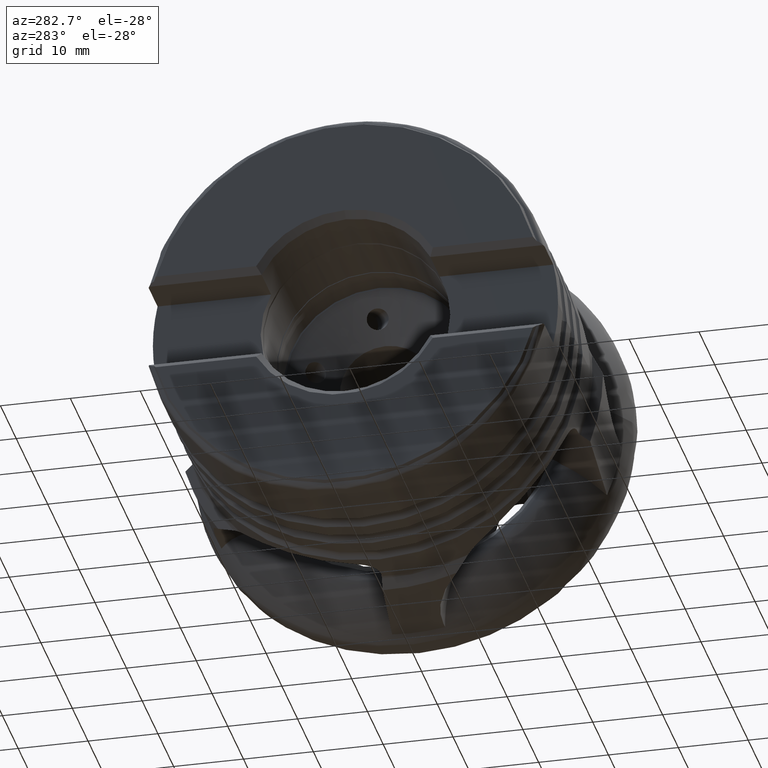
[diagram: clean part render]
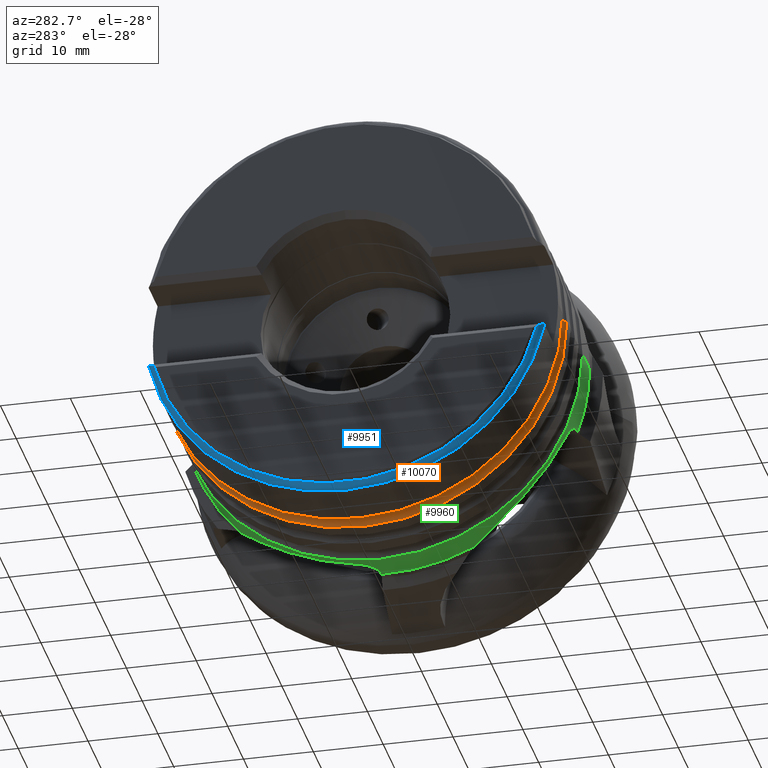
[diagram: same view with three faces highlighted in distinct colors, each labeled with its STEP entity id]
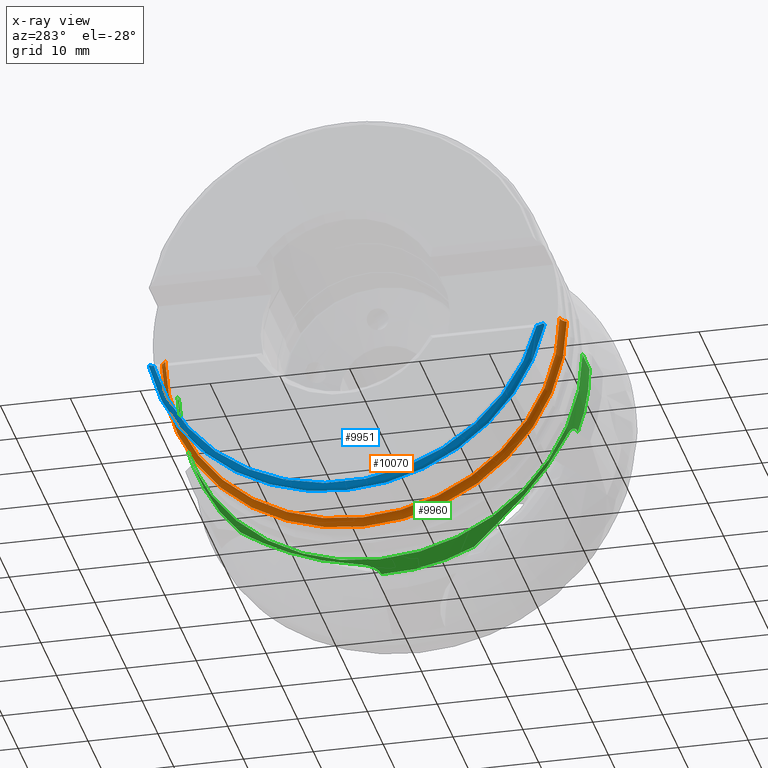
[diagram: x-ray of the same camera — body ghosted, the three highlighted faces saturated]
A machine part, auxiliary view with three faces highlighted in distinct colors.
The next image is the same camera in x-ray (body ghosted, the three faces saturated) — at least one of them is partly hidden behind the body in this view.
Their STEP definitions:

[orange] entity #10070 — the highlighted toroidal blend (fillet) surface has major radius 29.75 mm and minor (blend) radius 1.5 mm.
#56 = VERTEX_POINT ( 'NONE', #5645 ) ;
#62 = VERTEX_POINT ( 'NONE', #5600 ) ;
#236 = FACE_OUTER_BOUND ( 'NONE', #4464, .T. ) ;
#246 = TOROIDAL_SURFACE ( 'NONE', #8723, 29.75000000000000400, 1.499999999999999800 ) ;
#457 = ORIENTED_EDGE ( 'NONE', *, *, #3130, .F. ) ;
#463 = ORIENTED_EDGE ( 'NONE', *, *, #3115, .F. ) ;
#478 = ORIENTED_EDGE ( 'NONE', *, *, #3110, .T. ) ;
#479 = ORIENTED_EDGE ( 'NONE', *, *, #3131, .T. ) ;
#641 = CARTESIAN_POINT ( 'NONE',  ( -37.70096189432333500, -28.25000000000000400, 3.459627207591272700E-015 ) ) ;
#1651 = CIRCLE ( 'NONE', #8375, 29.00000000000000000 ) ;
#1660 = CIRCLE ( 'NONE', #8372, 28.25000000000000000 ) ;
#1668 = CIRCLE ( 'NONE', #8382, 1.500000000000001300 ) ;
#1671 = CIRCLE ( 'NONE', #8383, 1.500000000000001300 ) ;
#1805 = VERTEX_POINT ( 'NONE', #641 ) ;
#2006 = CARTESIAN_POINT ( 'NONE',  ( -36.40192378864668400, 28.99999999999999600, 0.0000000000000000000 ) ) ;
#2314 = CARTESIAN_POINT ( 'NONE',  ( -37.70096189432333500, -3.469446951953614200E-015, 0.0000000000000000000 ) ) ;
#2315 = DIRECTION ( 'NONE',  ( 1.000000000000000000, 1.224606353822377000E-016, -0.0000000000000000000 ) ) ;
#2316 = DIRECTION ( 'NONE',  ( 0.0000000000000000000, 1.000000000000000000, 0.0000000000000000000 ) ) ;
#2343 = CARTESIAN_POINT ( 'NONE',  ( -36.40192378864667700, -4.457802716293465500E-015, 0.0000000000000000000 ) ) ;
#2344 = DIRECTION ( 'NONE',  ( 1.000000000000000000, 1.224606353822377000E-016, -0.0000000000000000000 ) ) ;
#2345 = DIRECTION ( 'NONE',  ( -2.392722035830079000E-016, 1.000000000000000000, 0.0000000000000000000 ) ) ;
#2790 = VERTEX_POINT ( 'NONE', #2006 ) ;
#3110 = EDGE_CURVE ( 'NONE', #1805, #56, #1660, .T. ) ;
#3115 = EDGE_CURVE ( 'NONE', #62, #2790, #1651, .T. ) ;
#3130 = EDGE_CURVE ( 'NONE', #2790, #56, #1668, .T. ) ;
#3131 = EDGE_CURVE ( 'NONE', #62, #1805, #1671, .T. ) ;
#4464 = EDGE_LOOP ( 'NONE', ( #479, #478, #457, #463 ) ) ;
#5600 = CARTESIAN_POINT ( 'NONE',  ( -36.40192378864667000, -29.00000000000000400, 3.551475717527324800E-015 ) ) ;
#5645 = CARTESIAN_POINT ( 'NONE',  ( -37.70096189432333500, 28.24999999999999600, 0.0000000000000000000 ) ) ;
#7198 = CARTESIAN_POINT ( 'NONE',  ( -37.70096189432333500, -3.469446951953614200E-015, 0.0000000000000000000 ) ) ;
#7200 = DIRECTION ( 'NONE',  ( 1.000000000000000000, 1.224606353822377000E-016, -0.0000000000000000000 ) ) ;
#7204 = DIRECTION ( 'NONE',  ( -1.224606353822377000E-016, 1.000000000000000000, 0.0000000000000000000 ) ) ;
#7452 = CARTESIAN_POINT ( 'NONE',  ( -37.70096189432334200, 29.75000000000000000, 0.0000000000000000000 ) ) ;
#7453 = DIRECTION ( 'NONE',  ( -0.0000000000000000000, 0.0000000000000000000, -1.000000000000000000 ) ) ;
#7454 = DIRECTION ( 'NONE',  ( -1.000000000000000000, 0.0000000000000000000, 0.0000000000000000000 ) ) ;
#7457 = CARTESIAN_POINT ( 'NONE',  ( -37.70096189432332800, -29.75000000000000700, 3.643324227463376200E-015 ) ) ;
#7458 = DIRECTION ( 'NONE',  ( -1.499710251424085100E-032, 1.224646799147353200E-016, 1.000000000000000000 ) ) ;
#7459 = DIRECTION ( 'NONE',  ( 0.0000000000000000000, -1.000000000000000000, 1.224646799147354400E-016 ) ) ;
#8372 = AXIS2_PLACEMENT_3D ( 'NONE', #2314, #2315, #2316 ) ;
#8375 = AXIS2_PLACEMENT_3D ( 'NONE', #2343, #2344, #2345 ) ;
#8382 = AXIS2_PLACEMENT_3D ( 'NONE', #7452, #7453, #7454 ) ;
#8383 = AXIS2_PLACEMENT_3D ( 'NONE', #7457, #7458, #7459 ) ;
#8723 = AXIS2_PLACEMENT_3D ( 'NONE', #7198, #7200, #7204 ) ;
#10070 = ADVANCED_FACE ( 'NONE', ( #236 ), #246, .F. ) ;

[blue] entity #9951 — the highlighted toroidal blend (fillet) surface has major radius 28 mm and minor (blend) radius 1 mm.
#70 = VERTEX_POINT ( 'NONE', #5569 ) ;
#591 = CARTESIAN_POINT ( 'NONE',  ( -48.47876197310684900, -27.40284955085113700, -6.678761973106826800 ) ) ;
#661 = DIRECTION ( 'NONE',  ( 1.000000000000000000, 1.224606353822377000E-016, -0.0000000000000000000 ) ) ;
#664 = DIRECTION ( 'NONE',  ( 0.0000000000000000000, 1.000000000000000000, 0.0000000000000000000 ) ) ;
#688 = CARTESIAN_POINT ( 'NONE',  ( -48.47876197310684900, -5.936739993770927400E-015, 0.0000000000000000000 ) ) ;
#756 = CARTESIAN_POINT ( 'NONE',  ( -48.47876197310684900, 27.40284955085112300, -6.678761973106833900 ) ) ;
#771 = CARTESIAN_POINT ( 'NONE',  ( -48.00000000000000000, -28.19232914485657200, -6.199999999999992200 ) ) ;
#794 = CARTESIAN_POINT ( 'NONE',  ( -48.00000000000000000, 28.19232914485655800, -6.199999999999992200 ) ) ;
#819 = CARTESIAN_POINT ( 'NONE',  ( -47.49999999999999300, 28.32948993540125200, -6.199999999999992200 ) ) ;
#1018 = EDGE_CURVE ( 'NONE', #1822, #2684, #1552, .T. ) ;
#1033 = EDGE_CURVE ( 'NONE', #1822, #2685, #2903, .T. ) ;
#1446 = EDGE_LOOP ( 'NONE', ( #6067, #6068, #6069, #6070, #6071, #6072 ) ) ;
#1552 = CIRCLE ( 'NONE', #8326, 28.20499999999999800 ) ;
#1761 = CARTESIAN_POINT ( 'NONE',  ( -48.20991092553722300, -27.99330994152161600, -6.409910925537214900 ) ) ;
#1765 = CARTESIAN_POINT ( 'NONE',  ( -48.33541476243733100, -27.79598659037764100, -6.535414762437317100 ) ) ;
#1766 = CARTESIAN_POINT ( 'NONE',  ( -48.47876197310684900, -27.40284955085113700, -6.678761973106826800 ) ) ;
#1767 = CARTESIAN_POINT ( 'NONE',  ( -48.10961873495375600, -28.10342124075786100, -6.309618734953744500 ) ) ;
#1777 = CARTESIAN_POINT ( 'NONE',  ( -48.43667703717614600, -27.57047027243838900, -6.636677037176133000 ) ) ;
#1780 = CARTESIAN_POINT ( 'NONE',  ( -48.37362533912521200, -27.72356944803954100, -6.573625339125192600 ) ) ;
#1781 = CARTESIAN_POINT ( 'NONE',  ( -48.00000000000000000, -28.19232914485657200, -6.199999999999992200 ) ) ;
#1791 = CARTESIAN_POINT ( 'NONE',  ( -48.46194566721610600, -27.48958694475360400, -6.661945667216092400 ) ) ;
#1822 = VERTEX_POINT ( 'NONE', #591 ) ;
#2653 = VERTEX_POINT ( 'NONE', #794 ) ;
#2679 = VERTEX_POINT ( 'NONE', #819 ) ;
#2684 = VERTEX_POINT ( 'NONE', #756 ) ;
#2685 = VERTEX_POINT ( 'NONE', #771 ) ;
#2903 = B_SPLINE_CURVE_WITH_KNOTS ( 'NONE', 3,
 ( #1766, #1791, #1777, #1780, #1765, #1761, #1767, #1781 ),
 .UNSPECIFIED., .F., .F.,
 ( 4, 2, 2, 4 ),
 ( 1.053010900005165300E-006, 0.0002661246800636753100, 0.0005311963492273454500, 0.001061339687554692100 ),
 .UNSPECIFIED. ) ;
#2909 = B_SPLINE_CURVE_WITH_KNOTS ( 'NONE', 3,
 ( #5344, #5334, #5348, #5349, #5350, #5351 ),
 .UNSPECIFIED., .F., .F.,
 ( 4, 2, 4 ),
 ( 0.003335067615732117800, 0.003595925542677066700, 0.003856783469622015700 ),
 .UNSPECIFIED. ) ;
#2919 = B_SPLINE_CURVE_WITH_KNOTS ( 'NONE', 3,
 ( #5464, #5471, #5489, #5490, #5491, #5492, #5493, #5494 ),
 .UNSPECIFIED., .F., .F.,
 ( 4, 2, 2, 4 ),
 ( 3.226847663231204700E-007, 0.0005303020027152318700, 0.0007952916616896912700, 0.001060281320664150600 ),
 .UNSPECIFIED. ) ;
#2922 = B_SPLINE_CURVE_WITH_KNOTS ( 'NONE', 3,
 ( #5532, #5533, #5537, #5538, #5539, #5540 ),
 .UNSPECIFIED., .F., .F.,
 ( 4, 2, 4 ),
 ( 0.006013191223977129600, 0.006273666028562343300, 0.006534140833147556900 ),
 .UNSPECIFIED. ) ;
#3341 = EDGE_CURVE ( 'NONE', #70, #2679, #4915, .T. ) ;
#3347 = EDGE_CURVE ( 'NONE', #2679, #2653, #2909, .T. ) ;
#3376 = EDGE_CURVE ( 'NONE', #2653, #2684, #2919, .T. ) ;
#3387 = EDGE_CURVE ( 'NONE', #2685, #70, #2922, .T. ) ;
#4386 = FACE_OUTER_BOUND ( 'NONE', #1446, .T. ) ;
#4393 = TOROIDAL_SURFACE ( 'NONE', #8595, 28.00000000000000400, 1.000000000000001800 ) ;
#4915 = CIRCLE ( 'NONE', #8437, 29.00000000000000400 ) ;
#5334 = CARTESIAN_POINT ( 'NONE',  ( -47.58746555648979600, 28.32948993540123800, -6.199999999999992200 ) ) ;
#5336 = CARTESIAN_POINT ( 'NONE',  ( -47.49999999999999300, -5.816880180656290400E-015, 0.0000000000000000000 ) ) ;
#5337 = DIRECTION ( 'NONE',  ( 1.000000000000000000, 1.224606353822377000E-016, -0.0000000000000000000 ) ) ;
#5338 = DIRECTION ( 'NONE',  ( -2.392722035830078500E-016, 1.000000000000000000, 0.0000000000000000000 ) ) ;
#5344 = CARTESIAN_POINT ( 'NONE',  ( -47.49999999999999300, 28.32948993540125200, -6.199999999999992200 ) ) ;
#5348 = CARTESIAN_POINT ( 'NONE',  ( -47.67518709770934700, 28.31757686231651800, -6.199999999999993100 ) ) ;
#5349 = CARTESIAN_POINT ( 'NONE',  ( -47.84303445097531700, 28.27147959887726700, -6.199999999999993100 ) ) ;
#5350 = CARTESIAN_POINT ( 'NONE',  ( -47.92508939117979600, 28.23661231786740800, -6.199999999999993100 ) ) ;
#5351 = CARTESIAN_POINT ( 'NONE',  ( -48.00000000000000000, 28.19232914485655800, -6.199999999999992200 ) ) ;
#5464 = CARTESIAN_POINT ( 'NONE',  ( -48.00000000000000000, 28.19232914485655800, -6.199999999999992200 ) ) ;
#5471 = CARTESIAN_POINT ( 'NONE',  ( -48.10948692710240200, 28.10352814547437100, -6.309486927102391900 ) ) ;
#5489 = CARTESIAN_POINT ( 'NONE',  ( -48.20879110325744000, 27.99492430707387000, -6.408791103257437200 ) ) ;
#5490 = CARTESIAN_POINT ( 'NONE',  ( -48.33541284190091100, 27.79606226131219100, -6.535412841900893900 ) ) ;
#5491 = CARTESIAN_POINT ( 'NONE',  ( -48.37286614068249700, 27.72514046689707700, -6.572866140682478400 ) ) ;
#5492 = CARTESIAN_POINT ( 'NONE',  ( -48.43616489861664600, 27.57198082867866200, -6.636164898616638800 ) ) ;
#5493 = CARTESIAN_POINT ( 'NONE',  ( -48.46199337618384800, 27.48934086505250800, -6.661993376183832400 ) ) ;
#5494 = CARTESIAN_POINT ( 'NONE',  ( -48.47876197310684900, 27.40284955085112300, -6.678761973106833900 ) ) ;
#5532 = CARTESIAN_POINT ( 'NONE',  ( -48.00000000000000000, -28.19232914485657200, -6.199999999999992200 ) ) ;
#5533 = CARTESIAN_POINT ( 'NONE',  ( -47.92517507625178300, -28.23656166540413500, -6.199999999999992200 ) ) ;
#5537 = CARTESIAN_POINT ( 'NONE',  ( -47.84338497286842800, -28.27140856058295200, -6.199999999999993100 ) ) ;
#5538 = CARTESIAN_POINT ( 'NONE',  ( -47.67431044976236600, -28.31779231619363900, -6.199999999999993100 ) ) ;
#5539 = CARTESIAN_POINT ( 'NONE',  ( -47.58688434192325200, -28.32948993540125600, -6.199999999999993100 ) ) ;
#5540 = CARTESIAN_POINT ( 'NONE',  ( -47.49999999999999300, -28.32948993540124900, -6.199999999999992200 ) ) ;
#5569 = CARTESIAN_POINT ( 'NONE',  ( -47.49999999999999300, -28.32948993540124900, -6.199999999999992200 ) ) ;
#6067 = ORIENTED_EDGE ( 'NONE', *, *, #3347, .F. ) ;
#6068 = ORIENTED_EDGE ( 'NONE', *, *, #3341, .F. ) ;
#6069 = ORIENTED_EDGE ( 'NONE', *, *, #3387, .F. ) ;
#6070 = ORIENTED_EDGE ( 'NONE', *, *, #1033, .F. ) ;
#6071 = ORIENTED_EDGE ( 'NONE', *, *, #1018, .T. ) ;
#6072 = ORIENTED_EDGE ( 'NONE', *, *, #3376, .F. ) ;
#6495 = DIRECTION ( 'NONE',  ( 1.000000000000000000, 1.224606353822377000E-016, -0.0000000000000000000 ) ) ;
#6497 = CARTESIAN_POINT ( 'NONE',  ( -47.50000000000000000, -6.938893903907228400E-015, 0.0000000000000000000 ) ) ;
#6499 = DIRECTION ( 'NONE',  ( -1.224606353822377000E-016, 1.000000000000000000, 0.0000000000000000000 ) ) ;
#8326 = AXIS2_PLACEMENT_3D ( 'NONE', #688, #661, #664 ) ;
#8437 = AXIS2_PLACEMENT_3D ( 'NONE', #5336, #5337, #5338 ) ;
#8595 = AXIS2_PLACEMENT_3D ( 'NONE', #6497, #6495, #6499 ) ;
#9951 = ADVANCED_FACE ( 'NONE', ( #4386 ), #4393, .T. ) ;

[green] entity #9960 — the highlighted cylindrical surface (partial cylindrical patch) has radius 29 mm, axis along (1, 0, -0).
#366 = CARTESIAN_POINT ( 'NONE',  ( -24.96737810218754900, 28.25270874065803300, -6.543165494078656300 ) ) ;
#368 = CARTESIAN_POINT ( 'NONE',  ( -23.97710013907661500, 27.96745697985078400, -7.670437424860635300 ) ) ;
#369 = CARTESIAN_POINT ( 'NONE',  ( -25.04183868905427000, 28.29219895283935000, -6.370690818468942100 ) ) ;
#371 = CARTESIAN_POINT ( 'NONE',  ( -23.47101479817415600, 27.89218337960831900, -7.939378501867478700 ) ) ;
#374 = CARTESIAN_POINT ( 'NONE',  ( -25.19036139183066300, 28.41047879935201300, -5.820773088964873700 ) ) ;
#376 = CARTESIAN_POINT ( 'NONE',  ( -22.73043039123550500, 27.83116478041450400, -8.150258089256775300 ) ) ;
#379 = CARTESIAN_POINT ( 'NONE',  ( -22.34885443231667100, 27.81934582472628400, -8.190509009845776200 ) ) ;
#380 = CARTESIAN_POINT ( 'NONE',  ( -24.78196675525597200, 28.17452388238198300, -6.872028075353307000 ) ) ;
#383 = CARTESIAN_POINT ( 'NONE',  ( -23.29264255149855200, 27.87251613068312700, -8.007864316046550400 ) ) ;
#386 = CARTESIAN_POINT ( 'NONE',  ( -24.42035685255897800, 28.06352220138668200, -7.311636143977808400 ) ) ;
#396 = CARTESIAN_POINT ( 'NONE',  ( -24.28171784567777500, 28.02967808773401300, -7.439852586342768200 ) ) ;
#401 = CARTESIAN_POINT ( 'NONE',  ( -22.92060930301051900, 27.84183261003056100, -8.113901852650236900 ) ) ;
#402 = CARTESIAN_POINT ( 'NONE',  ( -25.15372393703817600, 28.37117209298756400, -6.009227667650128200 ) ) ;
#403 = CARTESIAN_POINT ( 'NONE',  ( -23.81246466443549900, 27.93948835462838800, -7.771268568206795500 ) ) ;
#404 = CARTESIAN_POINT ( 'NONE',  ( -25.20666555150703300, 28.44769152938221900, -5.632836465680691500 ) ) ;
#407 = CARTESIAN_POINT ( 'NONE',  ( -24.66999227443506000, 28.13569422854218500, -7.028798740014094500 ) ) ;
#615 = CARTESIAN_POINT ( 'NONE',  ( -25.46609438544314900, 28.99999999999999600, -1.020224847262451300E-018 ) ) ;
#629 = CARTESIAN_POINT ( 'NONE',  ( -26.40192378864669500, 28.99999999999999600, 0.0000000000000000000 ) ) ;
#632 = CARTESIAN_POINT ( 'NONE',  ( -26.40192378864668800, -29.00000000000000400, 3.551475717527324000E-015 ) ) ;
#658 = CARTESIAN_POINT ( 'NONE',  ( -22.15638821732152100, 27.81810640769932900, -8.194700296923295800 ) ) ;
#684 = CARTESIAN_POINT ( 'NONE',  ( -21.96221356236283400, 27.82164262673094200, -8.182676918372598300 ) ) ;
#830 = CARTESIAN_POINT ( 'NONE',  ( -21.96221356237309100, -29.00000000000000400, 3.551475717527324000E-015 ) ) ;
#852 = CARTESIAN_POINT ( 'NONE',  ( -25.20666555150703300, 28.44769152938221900, -5.632836465680691500 ) ) ;
#855 = CARTESIAN_POINT ( 'NONE',  ( -21.96221356236283400, 27.82164262673094200, -8.182676918372598300 ) ) ;
#868 = CARTESIAN_POINT ( 'NONE',  ( -25.20666555150711500, -26.32556410110897400, -12.16407311546608100 ) ) ;
#877 = CARTESIAN_POINT ( 'NONE',  ( -21.96221356237309800, 21.00955044120923900, -19.98996724005031200 ) ) ;
#883 = CARTESIAN_POINT ( 'NONE',  ( -25.20666555150702200, 3.433674307405088400, -28.79600459700358400 ) ) ;
#889 = CARTESIAN_POINT ( 'NONE',  ( -21.96221356237304400, -12.51928047366536000, -26.15850944571768400 ) ) ;
#970 = EDGE_CURVE ( 'NONE', #2750, #2547, #2822, .T. ) ;
#983 = EDGE_CURVE ( 'NONE', #2610, #1823, #2981, .T. ) ;
#999 = EDGE_CURVE ( 'NONE', #2766, #2641, #2945, .T. ) ;
#1020 = EDGE_CURVE ( 'NONE', #2618, #2610, #2880, .T. ) ;
#1060 = CARTESIAN_POINT ( 'NONE',  ( -25.20666555150711500, -26.32556410110897400, -12.16407311546608100 ) ) ;
#1065 = CARTESIAN_POINT ( 'NONE',  ( -21.96221356238335400, -27.31783851334559500, -9.733226544100000800 ) ) ;
#1079 = CARTESIAN_POINT ( 'NONE',  ( -23.81246466444567400, -27.17135794902909400, -10.13533087192264000 ) ) ;
#1089 = CARTESIAN_POINT ( 'NONE',  ( -24.28171784568465700, -27.04952154931585900, -10.45646422848589000 ) ) ;
#1096 = CARTESIAN_POINT ( 'NONE',  ( -22.73043039125220200, -27.30648678784635300, -9.765050909301653100 ) ) ;
#1102 = CARTESIAN_POINT ( 'NONE',  ( -23.97710013908580600, -27.13471798311254800, -10.23334452588480700 ) ) ;
#1106 = CARTESIAN_POINT ( 'NONE',  ( -24.96737810218924400, -26.70289768904481400, -11.31299345335982300 ) ) ;
#1108 = CARTESIAN_POINT ( 'NONE',  ( -24.42035685256482600, -27.00153827849693400, -10.58008658019920700 ) ) ;
#1113 = CARTESIAN_POINT ( 'NONE',  ( -25.15372393703850300, -26.48489577427504600, -11.81458924031454100 ) ) ;
#1124 = CARTESIAN_POINT ( 'NONE',  ( -23.47101479818651600, -27.23189996008926200, -9.971521911990437900 ) ) ;
#1138 = CARTESIAN_POINT ( 'NONE',  ( -24.66999227443906800, -26.89367902013782400, -10.85132849984024100 ) ) ;
#1140 = CARTESIAN_POINT ( 'NONE',  ( -24.78196675525912700, -26.83294538530033800, -11.00098212964851600 ) ) ;
#1142 = CARTESIAN_POINT ( 'NONE',  ( -22.34885443233525500, -27.32058394935286600, -9.725540222653117800 ) ) ;
#1145 = CARTESIAN_POINT ( 'NONE',  ( -23.29264255151206300, -27.25624377304203000, -9.904555605574151000 ) ) ;
#1156 = CARTESIAN_POINT ( 'NONE',  ( -25.19036139183072700, -26.40592474563894900, -11.99015609945510600 ) ) ;
#1157 = CARTESIAN_POINT ( 'NONE',  ( -22.92060930302649200, -27.29374758359236400, -9.800734115490980600 ) ) ;
#1159 = CARTESIAN_POINT ( 'NONE',  ( -22.15638821734105700, -27.32204481664757600, -9.721420889128197000 ) ) ;
#1161 = CARTESIAN_POINT ( 'NONE',  ( -25.04183868905540700, -26.63346787109388500, -11.47574016135683200 ) ) ;
#1443 = EDGE_LOOP ( 'NONE', ( #6027, #6028, #6029, #6030, #6031, #6032, #6033, #6034, #6035, #6036, #6037, #6038 ) ) ;
#1584 = CIRCLE ( 'NONE', #8335, 29.00000000000000000 ) ;
#1654 = CIRCLE ( 'NONE', #8367, 29.00000000000000000 ) ;
#1795 = VERTEX_POINT ( 'NONE', #632 ) ;
#1823 = VERTEX_POINT ( 'NONE', #615 ) ;
#1963 = VERTEX_POINT ( 'NONE', #629 ) ;
#1966 = CARTESIAN_POINT ( 'NONE',  ( -21.96221356238335800, 0.8151721791291067800, -28.98854074144426800 ) ) ;
#1982 = CARTESIAN_POINT ( 'NONE',  ( -21.96221356238335400, -27.31783851334559500, -9.733226544100000800 ) ) ;
#2021 = CARTESIAN_POINT ( 'NONE',  ( -21.96221356237309400, -2.689506627248607000E-015, 0.0000000000000000000 ) ) ;
#2022 = DIRECTION ( 'NONE',  ( 1.000000000000000000, 1.224606353822377000E-016, -0.0000000000000000000 ) ) ;
#2023 = DIRECTION ( 'NONE',  ( -1.196361017915039500E-016, 1.000000000000000000, 0.0000000000000000000 ) ) ;
#2272 = CARTESIAN_POINT ( 'NONE',  ( -26.40192378864669100, -3.233196362471090200E-015, 0.0000000000000000000 ) ) ;
#2273 = DIRECTION ( 'NONE',  ( 1.000000000000000000, 1.224606353822377000E-016, -0.0000000000000000000 ) ) ;
#2274 = DIRECTION ( 'NONE',  ( -1.196361017915039500E-016, 1.000000000000000000, 0.0000000000000000000 ) ) ;
#2547 = VERTEX_POINT ( 'NONE', #883 ) ;
#2610 = VERTEX_POINT ( 'NONE', #852 ) ;
#2618 = VERTEX_POINT ( 'NONE', #855 ) ;
#2627 = VERTEX_POINT ( 'NONE', #830 ) ;
#2640 = VERTEX_POINT ( 'NONE', #889 ) ;
#2641 = VERTEX_POINT ( 'NONE', #868 ) ;
#2690 = VERTEX_POINT ( 'NONE', #877 ) ;
#2750 = VERTEX_POINT ( 'NONE', #1966 ) ;
#2766 = VERTEX_POINT ( 'NONE', #1982 ) ;
#2803 = EDGE_CURVE ( 'NONE', #2690, #2618, #1584, .T. ) ;
#2822 = B_SPLINE_CURVE_WITH_KNOTS ( 'NONE', 3,
 ( #5633, #5638, #5596, #5608, #5637, #5604, #5616, #5572, #5579, #5624, #5618, #5562, #5647, #5570, #5611, #5586, #5583, #5574 ),
 .UNSPECIFIED., .F., .F.,
 ( 4, 2, 2, 2, 2, 2, 2, 2, 4 ),
 ( 1.976875460727948200E-007, 0.0005759880773976661200, 0.001151778467249259500, 0.001727568857100852800, 0.002303359246952446400, 0.002879149636804039700, 0.003454940026655633100, 0.004030730416507226000, 0.004606520806358819400 ),
 .UNSPECIFIED. ) ;
#2846 = B_SPLINE_CURVE_WITH_KNOTS ( 'NONE', 3,
 ( #7581, #7582, #7592, #7593, #7594, #7595, #7596, #7597, #7598, #7599, #7600, #7601, #7602, #7603, #7604, #7605, #7606, #7607 ),
 .UNSPECIFIED., .F., .F.,
 ( 4, 2, 2, 2, 2, 2, 2, 2, 4 ),
 ( 0.0000000000000000000, 0.005142880292695647900, 0.007714320439043472800, 0.009000040512217389100, 0.01028576058539130500, 0.01285720073173913000, 0.01414292080491305100, 0.01542864087808697000, 0.02057152117078262000 ),
 .UNSPECIFIED. ) ;
#2865 = B_SPLINE_CURVE_WITH_KNOTS ( 'NONE', 3,
 ( #7686, #7687, #7691, #7692, #7693, #7694, #7695, #7696, #7697, #7698, #7699, #7700, #7701, #7702, #7703, #7704, #7705, #7706 ),
 .UNSPECIFIED., .F., .F.,
 ( 4, 2, 2, 2, 2, 2, 2, 2, 4 ),
 ( 2.036823188809004900E-016, 0.005142880292695891700, 0.007714320439043735600, 0.009000040512217654500, 0.01028576058539157500, 0.01285720073173941800, 0.01414292080491334200, 0.01542864087808726700, 0.02057152117078293900 ),
 .UNSPECIFIED. ) ;
#2880 = B_SPLINE_CURVE_WITH_KNOTS ( 'NONE', 3,
 ( #684, #658, #379, #376, #401, #383, #371, #403, #368, #396, #386, #407, #380, #366, #369, #402, #374, #404 ),
 .UNSPECIFIED., .F., .F.,
 ( 4, 2, 2, 2, 2, 2, 2, 2, 4 ),
 ( 1.976875257010510900E-007, 0.0005759880773798288200, 0.001151778467233956600, 0.001727568857088084400, 0.002303359246942213300, 0.002879149636796342300, 0.003454940026650471000, 0.004030730416504599600, 0.004606520806358728300 ),
 .UNSPECIFIED. ) ;
#2945 = B_SPLINE_CURVE_WITH_KNOTS ( 'NONE', 3,
 ( #1065, #1159, #1142, #1096, #1157, #1145, #1124, #1079, #1102, #1089, #1108, #1138, #1140, #1106, #1161, #1113, #1156, #1060 ),
 .UNSPECIFIED., .F., .F.,
 ( 4, 2, 2, 2, 2, 2, 2, 2, 4 ),
 ( 1.976875460693294200E-007, 0.0005759880773976584200, 0.001151778467249247500, 0.001727568857100836800, 0.002303359246952426000, 0.002879149636804015000, 0.003454940026655604500, 0.004030730416507193000, 0.004606520806358782100 ),
 .UNSPECIFIED. ) ;
#2981 = B_SPLINE_CURVE_WITH_KNOTS ( 'NONE', 3,
 ( #4712, #4720, #4684, #4767 ),
 .UNSPECIFIED., .F., .F.,
 ( 4, 4 ),
 ( 3.035766082959412400E-017, 0.005657345996497049200 ),
 .UNSPECIFIED. ) ;
#3101 = EDGE_CURVE ( 'NONE', #1795, #1963, #1654, .T. ) ;
#3150 = EDGE_CURVE ( 'NONE', #2641, #2640, #2846, .T. ) ;
#3179 = EDGE_CURVE ( 'NONE', #2547, #2690, #2865, .T. ) ;
#3324 = EDGE_CURVE ( 'NONE', #2640, #2750, #4902, .T. ) ;
#3353 = EDGE_CURVE ( 'NONE', #2627, #2766, #4930, .T. ) ;
#3546 = EDGE_CURVE ( 'NONE', #1795, #2627, #4187, .T. ) ;
#3555 = EDGE_CURVE ( 'NONE', #1963, #1823, #4193, .T. ) ;
#4187 = LINE ( 'NONE', #9222, #4189 ) ;
#4189 = VECTOR ( 'NONE', #9223, 1000.000000000000000 ) ;
#4193 = LINE ( 'NONE', #9326, #4194 ) ;
#4194 = VECTOR ( 'NONE', #9327, 1000.000000000000000 ) ;
#4414 = FACE_OUTER_BOUND ( 'NONE', #1443, .T. ) ;
#4416 = CYLINDRICAL_SURFACE ( 'NONE', #8607, 29.00000000000000000 ) ;
#4684 = CARTESIAN_POINT ( 'NONE',  ( -25.46717942846661800, 28.99999999999999600, -1.888496297663071300 ) ) ;
#4712 = CARTESIAN_POINT ( 'NONE',  ( -25.20666555150703300, 28.44769152938221900, -5.632836465680691500 ) ) ;
#4720 = CARTESIAN_POINT ( 'NONE',  ( -25.36862610412145400, 28.81735144682806300, -3.765931334252829600 ) ) ;
#4767 = CARTESIAN_POINT ( 'NONE',  ( -25.46609438544314900, 28.99999999999999600, -1.020224847262451300E-018 ) ) ;
#4902 = CIRCLE ( 'NONE', #8426, 29.00000000000000000 ) ;
#4930 = CIRCLE ( 'NONE', #8444, 29.00000000000000000 ) ;
#5263 = CARTESIAN_POINT ( 'NONE',  ( -21.96221356237309400, -2.689506627248607000E-015, 0.0000000000000000000 ) ) ;
#5264 = DIRECTION ( 'NONE',  ( 1.000000000000000000, 1.224606353822377000E-016, -0.0000000000000000000 ) ) ;
#5265 = DIRECTION ( 'NONE',  ( -1.196361017915039500E-016, 1.000000000000000000, 0.0000000000000000000 ) ) ;
#5370 = CARTESIAN_POINT ( 'NONE',  ( -21.96221356237309400, -2.689506627248607000E-015, 0.0000000000000000000 ) ) ;
#5371 = DIRECTION ( 'NONE',  ( 1.000000000000000000, 1.224606353822377000E-016, -0.0000000000000000000 ) ) ;
#5372 = DIRECTION ( 'NONE',  ( -1.196361017915039500E-016, 1.000000000000000000, 0.0000000000000000000 ) ) ;
#5562 = CARTESIAN_POINT ( 'NONE',  ( -24.66999227443908500, 2.009622821744906100, -28.93065359724816300 ) ) ;
#5570 = CARTESIAN_POINT ( 'NONE',  ( -24.96737810218925800, 2.507646957652026400, -28.89187208546956500 ) ) ;
#5572 = CARTESIAN_POINT ( 'NONE',  ( -23.81246466444568800, 1.242861104054748600, -28.97348651704938000 ) ) ;
#5574 = CARTESIAN_POINT ( 'NONE',  ( -25.20666555150702200, 3.433674307405088400, -28.79600459700358400 ) ) ;
#5579 = CARTESIAN_POINT ( 'NONE',  ( -23.97710013908582400, 1.347400000482902100, -28.96892772346271600 ) ) ;
#5583 = CARTESIAN_POINT ( 'NONE',  ( -25.19036139183073400, 3.243436591194579900, -28.81868879807940700 ) ) ;
#5586 = CARTESIAN_POINT ( 'NONE',  ( -25.15372393703851000, 3.052059195851645400, -28.83954156633883400 ) ) ;
#5596 = CARTESIAN_POINT ( 'NONE',  ( -22.34885443233526200, 0.8070136666474940800, -28.98877660229774000 ) ) ;
#5604 = CARTESIAN_POINT ( 'NONE',  ( -23.29264255151208800, 0.9971496209927438500, -28.98290425393488700 ) ) ;
#5608 = CARTESIAN_POINT ( 'NONE',  ( -22.73043039125220600, 0.8489468251258429600, -28.98757887861953400 ) ) ;
#5611 = CARTESIAN_POINT ( 'NONE',  ( -25.04183868905541700, 2.683883268461362300, -28.87613190323179800 ) ) ;
#5616 = CARTESIAN_POINT ( 'NONE',  ( -23.47101479818652000, 1.068361014992468500, -28.98044563872782600 ) ) ;
#5618 = CARTESIAN_POINT ( 'NONE',  ( -24.42035685256484400, 1.718326082744246100, -28.94941548499739900 ) ) ;
#5624 = CARTESIAN_POINT ( 'NONE',  ( -24.28171784568466800, 1.585926593458819400, -28.95684887981888200 ) ) ;
#5633 = CARTESIAN_POINT ( 'NONE',  ( -21.96221356238335800, 0.8151721791291067800, -28.98854074144426800 ) ) ;
#5637 = CARTESIAN_POINT ( 'NONE',  ( -22.92060930302649500, 0.8868202015038004800, -28.98648989252764700 ) ) ;
#5638 = CARTESIAN_POINT ( 'NONE',  ( -22.15638821734106000, 0.8026445148352330200, -28.98889302559312100 ) ) ;
#5647 = CARTESIAN_POINT ( 'NONE',  ( -24.78196675525914100, 2.170719606856235100, -28.91913799295834100 ) ) ;
#6027 = ORIENTED_EDGE ( 'NONE', *, *, #3546, .F. ) ;
#6028 = ORIENTED_EDGE ( 'NONE', *, *, #3101, .T. ) ;
#6029 = ORIENTED_EDGE ( 'NONE', *, *, #3555, .T. ) ;
#6030 = ORIENTED_EDGE ( 'NONE', *, *, #983, .F. ) ;
#6031 = ORIENTED_EDGE ( 'NONE', *, *, #1020, .F. ) ;
#6032 = ORIENTED_EDGE ( 'NONE', *, *, #2803, .F. ) ;
#6033 = ORIENTED_EDGE ( 'NONE', *, *, #3179, .F. ) ;
#6034 = ORIENTED_EDGE ( 'NONE', *, *, #970, .F. ) ;
#6035 = ORIENTED_EDGE ( 'NONE', *, *, #3324, .F. ) ;
#6036 = ORIENTED_EDGE ( 'NONE', *, *, #3150, .F. ) ;
#6037 = ORIENTED_EDGE ( 'NONE', *, *, #999, .F. ) ;
#6038 = ORIENTED_EDGE ( 'NONE', *, *, #3353, .F. ) ;
#6522 = DIRECTION ( 'NONE',  ( -1.224606353822377000E-016, 1.000000000000000000, 0.0000000000000000000 ) ) ;
#6524 = CARTESIAN_POINT ( 'NONE',  ( 0.0000000000000000000, 0.0000000000000000000, 0.0000000000000000000 ) ) ;
#6525 = DIRECTION ( 'NONE',  ( 1.000000000000000000, 1.224606353822377000E-016, -0.0000000000000000000 ) ) ;
#7581 = CARTESIAN_POINT ( 'NONE',  ( -25.20666555150711500, -26.32556410110897400, -12.16407311546608100 ) ) ;
#7582 = CARTESIAN_POINT ( 'NONE',  ( -25.35389779340116000, -25.59987948509360900, -13.73460435896964400 ) ) ;
#7592 = CARTESIAN_POINT ( 'NONE',  ( -25.44818532400477600, -24.74382484356053500, -15.22120213557144200 ) ) ;
#7593 = CARTESIAN_POINT ( 'NONE',  ( -25.47170852038121700, -23.26877993554563800, -17.32914729282230600 ) ) ;
#7594 = CARTESIAN_POINT ( 'NONE',  ( -25.45947929405234300, -22.74507395542569600, -18.01135180859328600 ) ) ;
#7595 = CARTESIAN_POINT ( 'NONE',  ( -25.40129243185431900, -21.91021251065711100, -19.00340452499288400 ) ) ;
#7596 = CARTESIAN_POINT ( 'NONE',  ( -25.37509546262964500, -21.62284258460628500, -19.32974989390398000 ) ) ;
#7597 = CARTESIAN_POINT ( 'NONE',  ( -25.30793540903255900, -21.03759680210367500, -19.96512141690255900 ) ) ;
#7598 = CARTESIAN_POINT ( 'NONE',  ( -25.26698530801807200, -20.73936822741763900, -20.27465511320298600 ) ) ;
#7599 = CARTESIAN_POINT ( 'NONE',  ( -25.11950588605157400, -19.82871404769947800, -21.17909905877857200 ) ) ;
#7600 = CARTESIAN_POINT ( 'NONE',  ( -24.98851746013090000, -19.20031299332675100, -21.74988809660154800 ) ) ;
#7601 = CARTESIAN_POINT ( 'NONE',  ( -24.73030159196370900, -18.22912599726532400, -22.55828845878884100 ) ) ;
#7602 = CARTESIAN_POINT ( 'NONE',  ( -24.63390167111278500, -17.90063337525180000, -22.81978200696240900 ) ) ;
#7603 = CARTESIAN_POINT ( 'NONE',  ( -24.41774621885718600, -17.23472122765520000, -23.32679811473223100 ) ) ;
#7604 = CARTESIAN_POINT ( 'NONE',  ( -24.29756079645417400, -16.89621074314828400, -23.57306927965801800 ) ) ;
#7605 = CARTESIAN_POINT ( 'NONE',  ( -23.63539697443621500, -15.19602602437291400, -24.75530886322286500 ) ) ;
#7606 = CARTESIAN_POINT ( 'NONE',  ( -22.92219892908472500, -13.83379681963195800, -25.52939107578444200 ) ) ;
#7607 = CARTESIAN_POINT ( 'NONE',  ( -21.96221356237304400, -12.51928047366536000, -26.15850944571768400 ) ) ;
#7686 = CARTESIAN_POINT ( 'NONE',  ( -25.20666555150702200, 3.433674307405088400, -28.79600459700358400 ) ) ;
#7687 = CARTESIAN_POINT ( 'NONE',  ( -25.35389779340129100, 5.151587159489484900, -28.59115835860714600 ) ) ;
#7691 = CARTESIAN_POINT ( 'NONE',  ( -25.44818532400477600, 6.829961094383898000, -28.23638599024192400 ) ) ;
#7692 = CARTESIAN_POINT ( 'NONE',  ( -25.47170852038121300, 9.290550016222976400, -27.48492579544723900 ) ) ;
#7693 = CARTESIAN_POINT ( 'NONE',  ( -25.45947929405233300, 10.10119911430580300, -27.19766459944398600 ) ) ;
#7694 = CARTESIAN_POINT ( 'NONE',  ( -25.40129243185430100, 11.30268368912785200, -26.71022533087653300 ) ) ;
#7695 = CARTESIAN_POINT ( 'NONE',  ( -25.37509546262963400, 11.70185876961547700, -26.53776655514773000 ) ) ;
#7696 = CARTESIAN_POINT ( 'NONE',  ( -25.30793540903254500, 12.48698388951121700, -26.17750533841281100 ) ) ;
#7697 = CARTESIAN_POINT ( 'NONE',  ( -25.26698530801804300, 12.87352562617685500, -25.98952428160076200 ) ) ;
#7698 = CARTESIAN_POINT ( 'NONE',  ( -25.11950588605154500, 14.01511055177169500, -25.40292923953077400 ) ) ;
#7699 = CARTESIAN_POINT ( 'NONE',  ( -24.98851746013086800, 14.75214979070738300, -24.98166783481305900 ) ) ;
#7700 = CARTESIAN_POINT ( 'NONE',  ( -24.73030159196367400, 15.82109750943990400, -24.30782356384246200 ) ) ;
#7701 = CARTESIAN_POINT ( 'NONE',  ( -24.63390167111274900, 16.17130245512848000, -24.07621446542665200 ) ) ;
#7702 = CARTESIAN_POINT ( 'NONE',  ( -24.41774621885714700, 16.85928159865762800, -23.59957097189751000 ) ) ;
#7703 = CARTESIAN_POINT ( 'NONE',  ( -24.29756079645412500, 17.19810488732263900, -23.35373034495957300 ) ) ;
#7704 = CARTESIAN_POINT ( 'NONE',  ( -23.63539697443615900, 18.84786751877221500, -22.10209071200709400 ) ) ;
#7705 = CARTESIAN_POINT ( 'NONE',  ( -22.92219892908466500, 20.00501542567588900, -21.04573830887553500 ) ) ;
#7706 = CARTESIAN_POINT ( 'NONE',  ( -21.96221356237309800, 21.00955044120923900, -19.98996724005031200 ) ) ;
#8335 = AXIS2_PLACEMENT_3D ( 'NONE', #2021, #2022, #2023 ) ;
#8367 = AXIS2_PLACEMENT_3D ( 'NONE', #2272, #2273, #2274 ) ;
#8426 = AXIS2_PLACEMENT_3D ( 'NONE', #5263, #5264, #5265 ) ;
#8444 = AXIS2_PLACEMENT_3D ( 'NONE', #5370, #5371, #5372 ) ;
#8607 = AXIS2_PLACEMENT_3D ( 'NONE', #6524, #6525, #6522 ) ;
#9222 = CARTESIAN_POINT ( 'NONE',  ( 3.551358426084893700E-015, -29.00000000000000000, 3.551475717527324000E-015 ) ) ;
#9223 = DIRECTION ( 'NONE',  ( 1.000000000000000000, 1.224606353822377000E-016, -0.0000000000000000000 ) ) ;
#9326 = CARTESIAN_POINT ( 'NONE',  ( -3.551358426084893700E-015, 29.00000000000000000, 0.0000000000000000000 ) ) ;
#9327 = DIRECTION ( 'NONE',  ( 1.000000000000000000, 1.224606353822377000E-016, -0.0000000000000000000 ) ) ;
#9960 = ADVANCED_FACE ( 'NONE', ( #4414 ), #4416, .T. ) ;